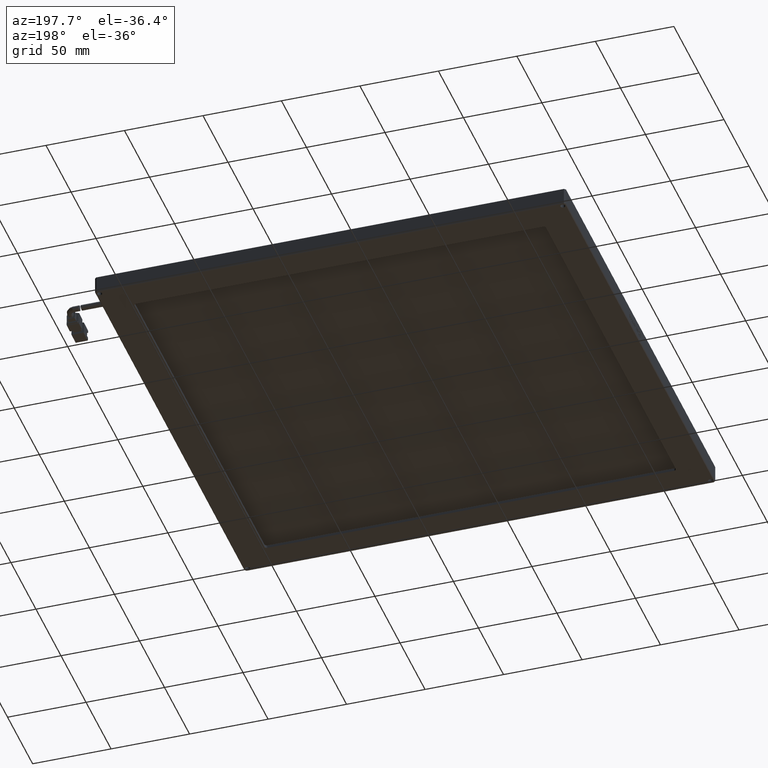
[diagram: clean part render]
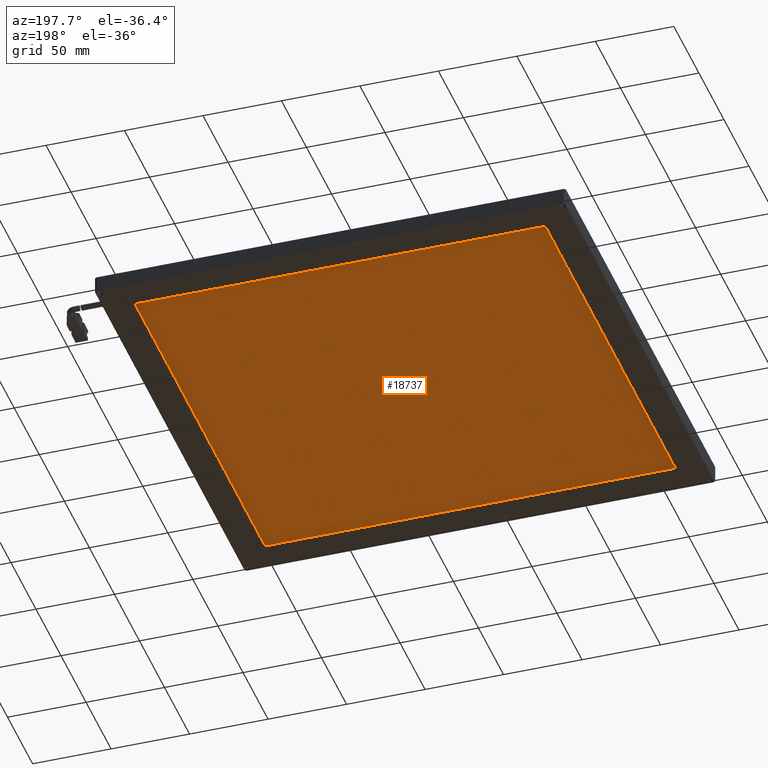
[diagram: same view with one face highlighted and labeled with its STEP entity id]
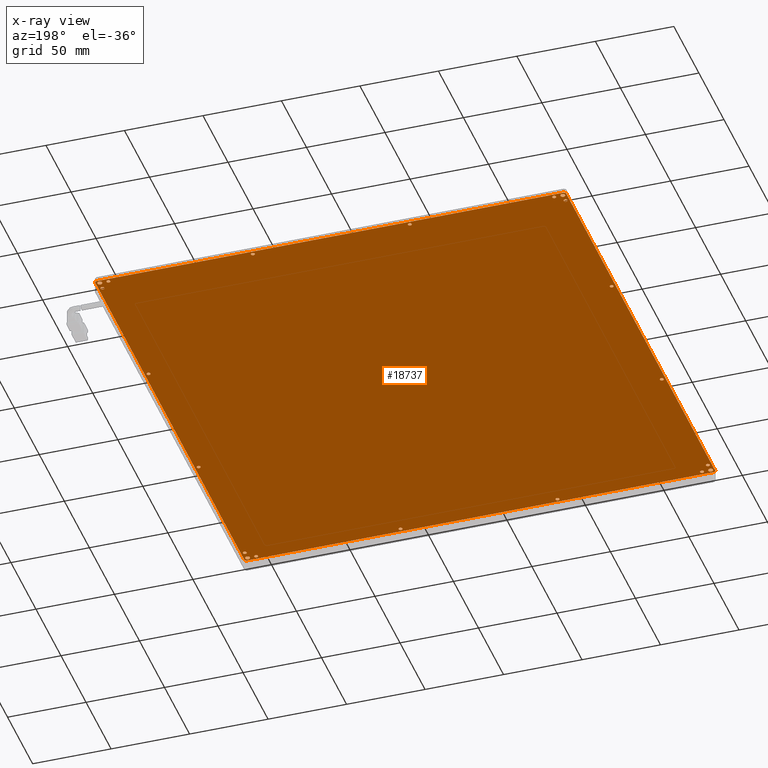
[diagram: x-ray of the same camera — body ghosted, the highlighted face saturated]
A machine part, auxiliary view. The second image highlights one B-rep face of the part: STEP entity #18737.
The next image is the same camera in x-ray: the body ghosted, the highlighted face saturated — about 0% of this face is hidden behind the body in this view.
In plain terms, the highlighted planar face has unit normal (0, 0, -1).
Its self-contained STEP definition (entity closure, byte-faithful):
#83 = DIRECTION ( 'NONE',  ( 1.000000000000000000, 0.0000000000000000000, 0.0000000000000000000 ) ) ;
#145 = EDGE_CURVE ( 'NONE', #11761, #1352, #11151, .T. ) ;
#193 = DIRECTION ( 'NONE',  ( -0.0000000000000000000, -0.0000000000000000000, 1.000000000000000000 ) ) ;
#235 = DIRECTION ( 'NONE',  ( 1.000000000000000000, 0.0000000000000000000, 0.0000000000000000000 ) ) ;
#320 = DIRECTION ( 'NONE',  ( 1.000000000000000000, 0.0000000000000000000, 0.0000000000000000000 ) ) ;
#372 = EDGE_CURVE ( 'NONE', #13410, #1768, #1755, .T. ) ;
#375 = DIRECTION ( 'NONE',  ( -0.0000000000000000000, -0.0000000000000000000, 1.000000000000000000 ) ) ;
#453 = CARTESIAN_POINT ( 'NONE',  ( 116.5726522842639700, 89.45380710659888700, 4.999999999999931600 ) ) ;
#458 = CARTESIAN_POINT ( 'NONE',  ( 117.7726522842639600, -102.5461928934010800, 4.999999999999931600 ) ) ;
#541 = DIRECTION ( 'NONE',  ( -0.7071067811865474600, -0.7071067811865474600, 0.0000000000000000000 ) ) ;
#591 = DIRECTION ( 'NONE',  ( 1.000000000000000000, 0.0000000000000000000, 0.0000000000000000000 ) ) ;
#592 = AXIS2_PLACEMENT_3D ( 'NONE', #7322, #17657, #8845 ) ;
#613 = CIRCLE ( 'NONE', #5356, 1.199999999999978900 ) ;
#659 = VERTEX_POINT ( 'NONE', #14449 ) ;
#734 = EDGE_CURVE ( 'NONE', #3322, #1005, #4504, .T. ) ;
#793 = CARTESIAN_POINT ( 'NONE',  ( -171.7273477157360200, -108.0461928934010800, 4.999999999999931600 ) ) ;
#1000 = EDGE_LOOP ( 'NONE', ( #16165, #18681 ) ) ;
#1005 = VERTEX_POINT ( 'NONE', #16422 ) ;
#1149 = VERTEX_POINT ( 'NONE', #13603 ) ;
#1198 = AXIS2_PLACEMENT_3D ( 'NONE', #4271, #5664, #4863 ) ;
#1204 = EDGE_CURVE ( 'NONE', #10111, #14779, #4694, .T. ) ;
#1222 = DIRECTION ( 'NONE',  ( 1.000000000000000000, 0.0000000000000000000, 0.0000000000000000000 ) ) ;
#1317 = DIRECTION ( 'NONE',  ( -0.0000000000000000000, -0.0000000000000000000, 1.000000000000000000 ) ) ;
#1331 = CARTESIAN_POINT ( 'NONE',  ( -170.5273477157360300, 186.9538071065989000, 4.999999999999931600 ) ) ;
#1352 = VERTEX_POINT ( 'NONE', #15015 ) ;
#1382 = VERTEX_POINT ( 'NONE', #10790 ) ;
#1387 = EDGE_CURVE ( 'NONE', #1149, #3064, #11187, .T. ) ;
#1489 = DIRECTION ( 'NONE',  ( -0.0000000000000000000, -0.0000000000000000000, 1.000000000000000000 ) ) ;
#1575 = CIRCLE ( 'NONE', #14925, 1.200000000000006600 ) ;
#1613 = FACE_BOUND ( 'NONE', #4375, .T. ) ;
#1654 = DIRECTION ( 'NONE',  ( -0.0000000000000000000, -0.0000000000000000000, 1.000000000000000000 ) ) ;
#1681 = VERTEX_POINT ( 'NONE', #16152 ) ;
#1697 = EDGE_CURVE ( 'NONE', #12675, #1962, #16235, .T. ) ;
#1748 = CARTESIAN_POINT ( 'NONE',  ( 112.2726522842639400, -108.0461928934010800, 4.999999999999931600 ) ) ;
#1755 = CIRCLE ( 'NONE', #1198, 1.200000000000006600 ) ;
#1768 = VERTEX_POINT ( 'NONE', #13342 ) ;
#1785 = CIRCLE ( 'NONE', #5091, 1.199999999999978900 ) ;
#1837 = EDGE_CURVE ( 'NONE', #16550, #4241, #9991, .T. ) ;
#1866 = EDGE_CURVE ( 'NONE', #659, #1890, #7192, .T. ) ;
#1890 = VERTEX_POINT ( 'NONE', #9856 ) ;
#1919 = DIRECTION ( 'NONE',  ( 1.000000000000000000, 0.0000000000000000000, 0.0000000000000000000 ) ) ;
#1947 = EDGE_CURVE ( 'NONE', #9341, #2327, #1982, .T. ) ;
#1962 = VERTEX_POINT ( 'NONE', #18947 ) ;
#1982 = CIRCLE ( 'NONE', #16885, 1.200000000000006600 ) ;
#2060 = FACE_BOUND ( 'NONE', #10217, .T. ) ;
#2212 = CIRCLE ( 'NONE', #2643, 1.500000000000001300 ) ;
#2214 = EDGE_CURVE ( 'NONE', #12881, #15191, #4942, .T. ) ;
#2244 = DIRECTION ( 'NONE',  ( -0.0000000000000000000, -0.0000000000000000000, 1.000000000000000000 ) ) ;
#2257 = DIRECTION ( 'NONE',  ( 1.000000000000000000, 0.0000000000000000000, 0.0000000000000000000 ) ) ;
#2287 = DIRECTION ( 'NONE',  ( -0.0000000000000000000, -0.0000000000000000000, 1.000000000000000000 ) ) ;
#2327 = VERTEX_POINT ( 'NONE', #13350 ) ;
#2422 = AXIS2_PLACEMENT_3D ( 'NONE', #8207, #2287, #11443 ) ;
#2484 = CARTESIAN_POINT ( 'NONE',  ( 113.4726522842639300, 186.9538071065989000, 4.999999999999931600 ) ) ;
#2510 = FACE_BOUND ( 'NONE', #17790, .T. ) ;
#2607 = AXIS2_PLACEMENT_3D ( 'NONE', #8955, #193, #10432 ) ;
#2612 = DIRECTION ( 'NONE',  ( 0.7071067811865474600, 0.7071067811865474600, 0.0000000000000000000 ) ) ;
#2615 = ORIENTED_EDGE ( 'NONE', *, *, #8906, .T. ) ;
#2638 = DIRECTION ( 'NONE',  ( 0.7071067811865474600, -0.7071067811865474600, 0.0000000000000000000 ) ) ;
#2643 = AXIS2_PLACEMENT_3D ( 'NONE', #3321, #13589, #4787 ) ;
#2727 = ORIENTED_EDGE ( 'NONE', *, *, #372, .T. ) ;
#2772 = ORIENTED_EDGE ( 'NONE', *, *, #3471, .T. ) ;
#2837 = DIRECTION ( 'NONE',  ( 0.0000000000000000000, 1.000000000000000000, 0.0000000000000000000 ) ) ;
#2867 = EDGE_CURVE ( 'NONE', #15608, #13973, #7237, .T. ) ;
#2913 = EDGE_CURVE ( 'NONE', #17012, #15883, #13284, .T. ) ;
#2975 = FACE_BOUND ( 'NONE', #4351, .T. ) ;
#3057 = CARTESIAN_POINT ( 'NONE',  ( -178.7273477157361000, -110.5461928934010800, 4.999999999999929800 ) ) ;
#3064 = VERTEX_POINT ( 'NONE', #7780 ) ;
#3175 = EDGE_CURVE ( 'NONE', #15607, #9614, #7216, .T. ) ;
#3212 = DIRECTION ( 'NONE',  ( 1.000000000000000000, 0.0000000000000000000, 0.0000000000000000000 ) ) ;
#3225 = DIRECTION ( 'NONE',  ( 1.000000000000000000, 0.0000000000000000000, 0.0000000000000000000 ) ) ;
#3276 = DIRECTION ( 'NONE',  ( -0.0000000000000000000, -0.0000000000000000000, 1.000000000000000000 ) ) ;
#3321 = CARTESIAN_POINT ( 'NONE',  ( 117.7726522842639600, 186.9538071065989000, 4.999999999999931600 ) ) ;
#3322 = VERTEX_POINT ( 'NONE', #13103 ) ;
#3330 = CIRCLE ( 'NONE', #18949, 1.199999999999978900 ) ;
#3370 = CARTESIAN_POINT ( 'NONE',  ( 113.4726522842639300, -108.0461928934010800, 4.999999999999931600 ) ) ;
#3447 = CARTESIAN_POINT ( 'NONE',  ( -178.4273477157360300, -102.5461928934010800, 4.999999999999931600 ) ) ;
#3450 = ORIENTED_EDGE ( 'NONE', *, *, #6002, .T. ) ;
#3451 = FACE_BOUND ( 'NONE', #17673, .T. ) ;
#3456 = DIRECTION ( 'NONE',  ( -0.0000000000000000000, -0.0000000000000000000, 1.000000000000000000 ) ) ;
#3471 = EDGE_CURVE ( 'NONE', #10892, #4112, #8351, .T. ) ;
#3509 = AXIS2_PLACEMENT_3D ( 'NONE', #18165, #9325, #591 ) ;
#3572 = LINE ( 'NONE', #7272, #14797 ) ;
#3715 = VECTOR ( 'NONE', #541, 1000.000000000000100 ) ;
#3781 = CARTESIAN_POINT ( 'NONE',  ( -179.7273477157360400, 188.4538071065987300, 4.999999999999929800 ) ) ;
#3795 = EDGE_CURVE ( 'NONE', #12235, #16550, #3572, .T. ) ;
#3820 = CIRCLE ( 'NONE', #3509, 1.500000000000001300 ) ;
#3830 = DIRECTION ( 'NONE',  ( -0.0000000000000000000, -0.0000000000000000000, 1.000000000000000000 ) ) ;
#3852 = CIRCLE ( 'NONE', #14048, 1.500000000000001300 ) ;
#3909 = EDGE_CURVE ( 'NONE', #12186, #11638, #9703, .T. ) ;
#3930 = ORIENTED_EDGE ( 'NONE', *, *, #1387, .T. ) ;
#3989 = ORIENTED_EDGE ( 'NONE', *, *, #9495, .T. ) ;
#4046 = EDGE_CURVE ( 'NONE', #4112, #10892, #11556, .T. ) ;
#4112 = VERTEX_POINT ( 'NONE', #8297 ) ;
#4124 = CARTESIAN_POINT ( 'NONE',  ( -171.7273477157360200, -108.0461928934010800, 4.999999999999931600 ) ) ;
#4140 = ORIENTED_EDGE ( 'NONE', *, *, #7331, .T. ) ;
#4211 = CARTESIAN_POINT ( 'NONE',  ( -79.72734771573603000, -108.0461928934010800, 4.999999999999931600 ) ) ;
#4241 = VERTEX_POINT ( 'NONE', #13162 ) ;
#4271 = CARTESIAN_POINT ( 'NONE',  ( -171.7273477157360200, 186.9538071065989000, 4.999999999999931600 ) ) ;
#4351 = EDGE_LOOP ( 'NONE', ( #3450, #17193 ) ) ;
#4375 = EDGE_LOOP ( 'NONE', ( #2727, #3989 ) ) ;
#4382 = DIRECTION ( 'NONE',  ( 1.000000000000000000, -0.0000000000000000000, 0.0000000000000000000 ) ) ;
#4422 = CARTESIAN_POINT ( 'NONE',  ( 117.7726522842639600, -108.0461928934010800, 4.999999999999931600 ) ) ;
#4489 = EDGE_LOOP ( 'NONE', ( #14212, #5053 ) ) ;
#4504 = CIRCLE ( 'NONE', #2422, 1.199999999999992600 ) ;
#4608 = ORIENTED_EDGE ( 'NONE', *, *, #14821, .T. ) ;
#4692 = ORIENTED_EDGE ( 'NONE', *, *, #3175, .T. ) ;
#4694 = CIRCLE ( 'NONE', #13550, 1.199999999999978900 ) ;
#4714 = VERTEX_POINT ( 'NONE', #9117 ) ;
#4723 = ORIENTED_EDGE ( 'NONE', *, *, #16469, .T. ) ;
#4737 = AXIS2_PLACEMENT_3D ( 'NONE', #12065, #3276, #13541 ) ;
#4771 = EDGE_CURVE ( 'NONE', #9614, #15607, #12148, .T. ) ;
#4787 = DIRECTION ( 'NONE',  ( 1.000000000000000000, 0.0000000000000000000, 0.0000000000000000000 ) ) ;
#4798 = ORIENTED_EDGE ( 'NONE', *, *, #1697, .T. ) ;
#4801 = EDGE_CURVE ( 'NONE', #1681, #16981, #3852, .T. ) ;
#4820 = VERTEX_POINT ( 'NONE', #6458 ) ;
#4851 = ORIENTED_EDGE ( 'NONE', *, *, #1947, .T. ) ;
#4863 = DIRECTION ( 'NONE',  ( 1.000000000000000000, 0.0000000000000000000, 0.0000000000000000000 ) ) ;
#4942 = CIRCLE ( 'NONE', #6282, 1.200000000000006600 ) ;
#5053 = ORIENTED_EDGE ( 'NONE', *, *, #10251, .T. ) ;
#5091 = AXIS2_PLACEMENT_3D ( 'NONE', #10408, #1654, #11906 ) ;
#5245 = DIRECTION ( 'NONE',  ( -0.0000000000000000000, -0.0000000000000000000, 1.000000000000000000 ) ) ;
#5253 = ORIENTED_EDGE ( 'NONE', *, *, #17217, .T. ) ;
#5265 = DIRECTION ( 'NONE',  ( -0.0000000000000000000, -1.000000000000000000, -0.0000000000000000000 ) ) ;
#5295 = DIRECTION ( 'NONE',  ( -0.0000000000000000000, -0.0000000000000000000, 1.000000000000000000 ) ) ;
#5356 = AXIS2_PLACEMENT_3D ( 'NONE', #1748, #12008, #3212 ) ;
#5427 = CIRCLE ( 'NONE', #12982, 1.200000000000006600 ) ;
#5471 = FACE_BOUND ( 'NONE', #13067, .T. ) ;
#5474 = ORIENTED_EDGE ( 'NONE', *, *, #12350, .T. ) ;
#5484 = CARTESIAN_POINT ( 'NONE',  ( -179.7273477157360400, 188.4538071065987900, 4.999999999999929800 ) ) ;
#5487 = CIRCLE ( 'NONE', #6230, 1.200000000000006600 ) ;
#5502 = DIRECTION ( 'NONE',  ( -0.0000000000000000000, -0.0000000000000000000, 1.000000000000000000 ) ) ;
#5639 = CARTESIAN_POINT ( 'NONE',  ( 111.0726522842639700, -108.0461928934010800, 4.999999999999931600 ) ) ;
#5664 = DIRECTION ( 'NONE',  ( -0.0000000000000000000, -0.0000000000000000000, 1.000000000000000000 ) ) ;
#5678 = DIRECTION ( 'NONE',  ( 1.000000000000000000, 0.0000000000000000000, 0.0000000000000000000 ) ) ;
#5703 = CARTESIAN_POINT ( 'NONE',  ( -177.2273477157360400, 181.4538071065989000, 4.999999999999931600 ) ) ;
#5737 = EDGE_CURVE ( 'NONE', #4714, #9435, #7904, .T. ) ;
#5871 = DIRECTION ( 'NONE',  ( 1.000000000000000000, 0.0000000000000000000, 0.0000000000000000000 ) ) ;
#5928 = FACE_BOUND ( 'NONE', #14293, .T. ) ;
#5961 = DIRECTION ( 'NONE',  ( 1.000000000000000000, 0.0000000000000000000, 0.0000000000000000000 ) ) ;
#5966 = EDGE_LOOP ( 'NONE', ( #15287, #13094 ) ) ;
#6002 = EDGE_CURVE ( 'NONE', #13973, #15608, #3820, .T. ) ;
#6105 = LINE ( 'NONE', #9607, #9535 ) ;
#6198 = DIRECTION ( 'NONE',  ( -0.0000000000000000000, -0.0000000000000000000, 1.000000000000000000 ) ) ;
#6204 = DIRECTION ( 'NONE',  ( -0.0000000000000000000, -0.0000000000000000000, 1.000000000000000000 ) ) ;
#6207 = AXIS2_PLACEMENT_3D ( 'NONE', #4422, #14666, #5871 ) ;
#6230 = AXIS2_PLACEMENT_3D ( 'NONE', #14996, #6198, #16509 ) ;
#6282 = AXIS2_PLACEMENT_3D ( 'NONE', #4124, #1317, #14378 ) ;
#6330 = EDGE_CURVE ( 'NONE', #4820, #8802, #5427, .T. ) ;
#6338 = DIRECTION ( 'NONE',  ( -0.0000000000000000000, -0.0000000000000000000, 1.000000000000000000 ) ) ;
#6340 = EDGE_CURVE ( 'NONE', #3064, #1149, #1575, .T. ) ;
#6372 = FACE_BOUND ( 'NONE', #4489, .T. ) ;
#6390 = DIRECTION ( 'NONE',  ( -0.0000000000000000000, -0.0000000000000000000, 1.000000000000000000 ) ) ;
#6438 = CARTESIAN_POINT ( 'NONE',  ( -178.7273477157360400, -108.0461928934010800, 4.999999999999931600 ) ) ;
#6442 = EDGE_CURVE ( 'NONE', #1005, #3322, #18320, .T. ) ;
#6449 = EDGE_LOOP ( 'NONE', ( #12182, #15576 ) ) ;
#6458 = CARTESIAN_POINT ( 'NONE',  ( -178.4273477157360300, 89.45380710659888700, 4.999999999999931600 ) ) ;
#6587 = ORIENTED_EDGE ( 'NONE', *, *, #14475, .T. ) ;
#6690 = CARTESIAN_POINT ( 'NONE',  ( -179.7273477157360400, -109.5461928934011400, 4.999999999999929800 ) ) ;
#6716 = CARTESIAN_POINT ( 'NONE',  ( 118.9726522842639300, 181.4538071065989000, 4.999999999999931600 ) ) ;
#6815 = FACE_BOUND ( 'NONE', #14848, .T. ) ;
#6834 = VERTEX_POINT ( 'NONE', #19053 ) ;
#6879 = PLANE ( 'NONE',  #15702 ) ;
#6934 = DIRECTION ( 'NONE',  ( 0.0000000000000000000, 0.0000000000000000000, -1.000000000000000000 ) ) ;
#6992 = AXIS2_PLACEMENT_3D ( 'NONE', #17814, #8992, #235 ) ;
#7029 = CARTESIAN_POINT ( 'NONE',  ( -177.2273477157360400, 181.4538071065989000, 4.999999999999931600 ) ) ;
#7140 = DIRECTION ( 'NONE',  ( 1.000000000000000000, 0.0000000000000000000, 0.0000000000000000000 ) ) ;
#7167 = ORIENTED_EDGE ( 'NONE', *, *, #734, .T. ) ;
#7192 = CIRCLE ( 'NONE', #9002, 1.200000000000006600 ) ;
#7191 = CARTESIAN_POINT ( 'NONE',  ( -179.7273477157360400, 189.4538071065989000, 4.999999999999931600 ) ) ;
#7216 = CIRCLE ( 'NONE', #15361, 1.199999999999978900 ) ;
#7237 = CIRCLE ( 'NONE', #11370, 1.500000000000001300 ) ;
#7272 = CARTESIAN_POINT ( 'NONE',  ( -179.7273477157360400, 189.4538071065989000, 4.999999999999931600 ) ) ;
#7285 = CARTESIAN_POINT ( 'NONE',  ( 21.47265228426395500, 186.9538071065989000, 4.999999999999931600 ) ) ;
#7298 = EDGE_LOOP ( 'NONE', ( #4851, #4723 ) ) ;
#7322 = CARTESIAN_POINT ( 'NONE',  ( -177.2273477157360400, 89.45380710659888700, 4.999999999999931600 ) ) ;
#7331 = EDGE_CURVE ( 'NONE', #15883, #12235, #8082, .T. ) ;
#7395 = CIRCLE ( 'NONE', #12731, 1.200000000000006600 ) ;
#7521 = ORIENTED_EDGE ( 'NONE', *, *, #145, .T. ) ;
#7719 = AXIS2_PLACEMENT_3D ( 'NONE', #13970, #13914, #11032 ) ;
#7736 = EDGE_LOOP ( 'NONE', ( #2772, #9160 ) ) ;
#7780 = CARTESIAN_POINT ( 'NONE',  ( -176.0273477157360300, -10.54619289340108400, 4.999999999999931600 ) ) ;
#7842 = AXIS2_PLACEMENT_3D ( 'NONE', #9354, #8311, #13983 ) ;
#7883 = CARTESIAN_POINT ( 'NONE',  ( 116.2726522842639600, 186.9538071065989000, 4.999999999999931600 ) ) ;
#7904 = CIRCLE ( 'NONE', #15028, 1.199999999999992600 ) ;
#7940 = AXIS2_PLACEMENT_3D ( 'NONE', #8258, #18561, #9729 ) ;
#7967 = AXIS2_PLACEMENT_3D ( 'NONE', #17906, #9080, #320 ) ;
#8082 = LINE ( 'NONE', #5484, #18916 ) ;
#8117 = CARTESIAN_POINT ( 'NONE',  ( 118.9726522842639300, -10.54619289340108400, 4.999999999999931600 ) ) ;
#8204 = EDGE_LOOP ( 'NONE', ( #7521, #11009, #13362, #4140, #13998, #10586, #12649, #14708 ) ) ;
#8207 = CARTESIAN_POINT ( 'NONE',  ( -79.72734771573603000, 186.9538071065989000, 4.999999999999931600 ) ) ;
#8235 = VERTEX_POINT ( 'NONE', #3447 ) ;
#8258 = CARTESIAN_POINT ( 'NONE',  ( 117.7726522842639600, 181.4538071065989000, 4.999999999999931600 ) ) ;
#8297 = CARTESIAN_POINT ( 'NONE',  ( -178.7273477157360400, 186.9538071065989000, 4.999999999999931600 ) ) ;
#8311 = DIRECTION ( 'NONE',  ( -0.0000000000000000000, -0.0000000000000000000, 1.000000000000000000 ) ) ;
#8351 = CIRCLE ( 'NONE', #7719, 1.500000000000001300 ) ;
#8409 = VECTOR ( 'NONE', #13332, 1000.000000000000100 ) ;
#8497 = CIRCLE ( 'NONE', #17926, 1.200000000000006600 ) ;
#8527 = DIRECTION ( 'NONE',  ( 1.000000000000000000, 0.0000000000000000000, 0.0000000000000000000 ) ) ;
#8554 = EDGE_CURVE ( 'NONE', #18599, #1382, #3330, .T. ) ;
#8705 = EDGE_LOOP ( 'NONE', ( #11928, #6587 ) ) ;
#8802 = VERTEX_POINT ( 'NONE', #16236 ) ;
#8840 = DIRECTION ( 'NONE',  ( -0.0000000000000000000, -0.0000000000000000000, 1.000000000000000000 ) ) ;
#8845 = DIRECTION ( 'NONE',  ( 1.000000000000000000, 0.0000000000000000000, 0.0000000000000000000 ) ) ;
#8887 = CARTESIAN_POINT ( 'NONE',  ( 119.2726522842639600, -108.0461928934010800, 4.999999999999931600 ) ) ;
#8905 = CARTESIAN_POINT ( 'NONE',  ( -176.0273477157360300, -102.5461928934010800, 4.999999999999931600 ) ) ;
#8906 = EDGE_CURVE ( 'NONE', #1382, #18599, #14512, .T. ) ;
#8940 = EDGE_CURVE ( 'NONE', #11638, #12186, #13165, .T. ) ;
#8950 = DIRECTION ( 'NONE',  ( 1.000000000000000000, 0.0000000000000000000, 0.0000000000000000000 ) ) ;
#8955 = CARTESIAN_POINT ( 'NONE',  ( -171.7273477157360200, 186.9538071065989000, 4.999999999999931600 ) ) ;
#8982 = CARTESIAN_POINT ( 'NONE',  ( 20.27265228426394800, -108.0461928934010800, 4.999999999999931600 ) ) ;
#8992 = DIRECTION ( 'NONE',  ( -0.0000000000000000000, -0.0000000000000000000, 1.000000000000000000 ) ) ;
#9002 = AXIS2_PLACEMENT_3D ( 'NONE', #8982, #5502, #3225 ) ;
#9079 = VECTOR ( 'NONE', #2638, 1000.000000000000100 ) ;
#9080 = DIRECTION ( 'NONE',  ( -0.0000000000000000000, -0.0000000000000000000, 1.000000000000000000 ) ) ;
#9117 = CARTESIAN_POINT ( 'NONE',  ( -78.52734771573604200, -108.0461928934010800, 4.999999999999931600 ) ) ;
#9126 = CARTESIAN_POINT ( 'NONE',  ( 20.27265228426394800, -108.0461928934010800, 4.999999999999931600 ) ) ;
#9160 = ORIENTED_EDGE ( 'NONE', *, *, #4046, .T. ) ;
#9325 = DIRECTION ( 'NONE',  ( -0.0000000000000000000, -0.0000000000000000000, 1.000000000000000000 ) ) ;
#9341 = VERTEX_POINT ( 'NONE', #7285 ) ;
#9354 = CARTESIAN_POINT ( 'NONE',  ( -177.2273477157360400, -10.54619289340108400, 4.999999999999931600 ) ) ;
#9366 = FACE_BOUND ( 'NONE', #7298, .T. ) ;
#9435 = VERTEX_POINT ( 'NONE', #13348 ) ;
#9495 = EDGE_CURVE ( 'NONE', #1768, #13410, #11685, .T. ) ;
#9535 = VECTOR ( 'NONE', #5265, 1000.000000000000000 ) ;
#9607 = CARTESIAN_POINT ( 'NONE',  ( 120.2726522842639600, 189.4538071065989000, 4.999999999999931600 ) ) ;
#9614 = VERTEX_POINT ( 'NONE', #453 ) ;
#9617 = ORIENTED_EDGE ( 'NONE', *, *, #10046, .T. ) ;
#9657 = DIRECTION ( 'NONE',  ( -0.0000000000000000000, -0.0000000000000000000, 1.000000000000000000 ) ) ;
#9703 = CIRCLE ( 'NONE', #15878, 1.199999999999978900 ) ;
#9718 = CARTESIAN_POINT ( 'NONE',  ( 117.7726522842639600, 89.45380710659888700, 4.999999999999931600 ) ) ;
#9729 = DIRECTION ( 'NONE',  ( 1.000000000000000000, 0.0000000000000000000, 0.0000000000000000000 ) ) ;
#9759 = CARTESIAN_POINT ( 'NONE',  ( 117.7726522842639600, -108.0461928934010800, 4.999999999999931600 ) ) ;
#9778 = CIRCLE ( 'NONE', #18011, 1.199999999999978900 ) ;
#9814 = FACE_BOUND ( 'NONE', #1000, .T. ) ;
#9856 = CARTESIAN_POINT ( 'NONE',  ( 21.47265228426395500, -108.0461928934010800, 4.999999999999931600 ) ) ;
#9885 = CARTESIAN_POINT ( 'NONE',  ( -175.7273477157360400, 186.9538071065989000, 4.999999999999931600 ) ) ;
#9963 = DIRECTION ( 'NONE',  ( -0.0000000000000000000, -0.0000000000000000000, 1.000000000000000000 ) ) ;
#9984 = DIRECTION ( 'NONE',  ( -0.0000000000000000000, -0.0000000000000000000, 1.000000000000000000 ) ) ;
#9991 = LINE ( 'NONE', #12713, #9079 ) ;
#10003 = ORIENTED_EDGE ( 'NONE', *, *, #10026, .T. ) ;
#10026 = EDGE_CURVE ( 'NONE', #13669, #12150, #1785, .T. ) ;
#10046 = EDGE_CURVE ( 'NONE', #9435, #4714, #13027, .T. ) ;
#10079 = AXIS2_PLACEMENT_3D ( 'NONE', #9759, #9963, #8950 ) ;
#10111 = VERTEX_POINT ( 'NONE', #3370 ) ;
#10217 = EDGE_LOOP ( 'NONE', ( #4692, #18019 ) ) ;
#10248 = CARTESIAN_POINT ( 'NONE',  ( -177.2273477157360400, 89.45380710659888700, 4.999999999999931600 ) ) ;
#10251 = EDGE_CURVE ( 'NONE', #15191, #12881, #14829, .T. ) ;
#10266 = VERTEX_POINT ( 'NONE', #13923 ) ;
#10303 = FACE_BOUND ( 'NONE', #11824, .T. ) ;
#10408 = CARTESIAN_POINT ( 'NONE',  ( 117.7726522842639600, 181.4538071065989000, 4.999999999999931600 ) ) ;
#10432 = DIRECTION ( 'NONE',  ( 1.000000000000000000, 0.0000000000000000000, 0.0000000000000000000 ) ) ;
#10586 = ORIENTED_EDGE ( 'NONE', *, *, #1837, .T. ) ;
#10608 = DIRECTION ( 'NONE',  ( 1.000000000000000000, 0.0000000000000000000, 0.0000000000000000000 ) ) ;
#10692 = DIRECTION ( 'NONE',  ( -0.0000000000000000000, -0.0000000000000000000, 1.000000000000000000 ) ) ;
#10766 = CARTESIAN_POINT ( 'NONE',  ( 120.2726522842639600, -109.5461928934011400, 4.999999999999929800 ) ) ;
#10771 = FACE_BOUND ( 'NONE', #14498, .T. ) ;
#10790 = CARTESIAN_POINT ( 'NONE',  ( 116.5726522842639700, -10.54619289340108400, 4.999999999999931600 ) ) ;
#10847 = CIRCLE ( 'NONE', #592, 1.200000000000006600 ) ;
#10892 = VERTEX_POINT ( 'NONE', #9885 ) ;
#10952 = EDGE_CURVE ( 'NONE', #12422, #16967, #10961, .T. ) ;
#10961 = CIRCLE ( 'NONE', #15044, 1.200000000000006600 ) ;
#11009 = ORIENTED_EDGE ( 'NONE', *, *, #17823, .T. ) ;
#11021 = CARTESIAN_POINT ( 'NONE',  ( -177.2273477157360400, -102.5461928934010800, 4.999999999999931600 ) ) ;
#11032 = DIRECTION ( 'NONE',  ( 1.000000000000000000, 0.0000000000000000000, 0.0000000000000000000 ) ) ;
#11040 = DIRECTION ( 'NONE',  ( -0.0000000000000000000, -0.0000000000000000000, 1.000000000000000000 ) ) ;
#11056 = ORIENTED_EDGE ( 'NONE', *, *, #18200, .T. ) ;
#11151 = LINE ( 'NONE', #14587, #18977 ) ;
#11187 = CIRCLE ( 'NONE', #7842, 1.200000000000006600 ) ;
#11241 = ORIENTED_EDGE ( 'NONE', *, *, #18534, .T. ) ;
#11370 = AXIS2_PLACEMENT_3D ( 'NONE', #13611, #13419, #13169 ) ;
#11443 = DIRECTION ( 'NONE',  ( 1.000000000000000000, 0.0000000000000000000, 0.0000000000000000000 ) ) ;
#11446 = CIRCLE ( 'NONE', #16726, 1.199999999999978900 ) ;
#11461 = EDGE_LOOP ( 'NONE', ( #10003, #11056 ) ) ;
#11556 = CIRCLE ( 'NONE', #17501, 1.500000000000001300 ) ;
#11638 = VERTEX_POINT ( 'NONE', #15921 ) ;
#11685 = CIRCLE ( 'NONE', #2607, 1.200000000000006600 ) ;
#11746 = DIRECTION ( 'NONE',  ( 1.000000000000000000, 0.0000000000000000000, 0.0000000000000000000 ) ) ;
#11758 = CIRCLE ( 'NONE', #17609, 1.200000000000006600 ) ;
#11761 = VERTEX_POINT ( 'NONE', #13318 ) ;
#11824 = EDGE_LOOP ( 'NONE', ( #11241, #5474 ) ) ;
#11906 = DIRECTION ( 'NONE',  ( 1.000000000000000000, 0.0000000000000000000, 0.0000000000000000000 ) ) ;
#11928 = ORIENTED_EDGE ( 'NONE', *, *, #4801, .T. ) ;
#12008 = DIRECTION ( 'NONE',  ( -0.0000000000000000000, -0.0000000000000000000, 1.000000000000000000 ) ) ;
#12065 = CARTESIAN_POINT ( 'NONE',  ( -79.72734771573603000, 186.9538071065989000, 4.999999999999931600 ) ) ;
#12148 = CIRCLE ( 'NONE', #13096, 1.199999999999978900 ) ;
#12150 = VERTEX_POINT ( 'NONE', #13371 ) ;
#12182 = ORIENTED_EDGE ( 'NONE', *, *, #17935, .T. ) ;
#12186 = VERTEX_POINT ( 'NONE', #16437 ) ;
#12231 = CARTESIAN_POINT ( 'NONE',  ( 112.2726522842639400, 186.9538071065989000, 4.999999999999931600 ) ) ;
#12235 = VERTEX_POINT ( 'NONE', #15060 ) ;
#12277 = EDGE_CURVE ( 'NONE', #6834, #11761, #15397, .T. ) ;
#12350 = EDGE_CURVE ( 'NONE', #8235, #18906, #11758, .T. ) ;
#12422 = VERTEX_POINT ( 'NONE', #15536 ) ;
#12505 = DIRECTION ( 'NONE',  ( 1.000000000000000000, 0.0000000000000000000, 0.0000000000000000000 ) ) ;
#12627 = CARTESIAN_POINT ( 'NONE',  ( 117.7726522842639600, -10.54619289340108400, 4.999999999999931600 ) ) ;
#12649 = ORIENTED_EDGE ( 'NONE', *, *, #18189, .T. ) ;
#12675 = VERTEX_POINT ( 'NONE', #8887 ) ;
#12713 = CARTESIAN_POINT ( 'NONE',  ( 119.2726522842638400, 189.4538071065989000, 4.999999999999929800 ) ) ;
#12731 = AXIS2_PLACEMENT_3D ( 'NONE', #5703, #15995, #7140 ) ;
#12881 = VERTEX_POINT ( 'NONE', #16601 ) ;
#12982 = AXIS2_PLACEMENT_3D ( 'NONE', #10248, #1489, #11746 ) ;
#13027 = CIRCLE ( 'NONE', #6992, 1.199999999999992600 ) ;
#13067 = EDGE_LOOP ( 'NONE', ( #7167, #15277 ) ) ;
#13094 = ORIENTED_EDGE ( 'NONE', *, *, #13516, .T. ) ;
#13096 = AXIS2_PLACEMENT_3D ( 'NONE', #15140, #6338, #16641 ) ;
#13103 = CARTESIAN_POINT ( 'NONE',  ( -78.52734771573604200, 186.9538071065989000, 4.999999999999931600 ) ) ;
#13122 = CARTESIAN_POINT ( 'NONE',  ( 20.27265228426394800, 186.9538071065989000, 4.999999999999931600 ) ) ;
#13151 = ORIENTED_EDGE ( 'NONE', *, *, #6340, .T. ) ;
#13162 = CARTESIAN_POINT ( 'NONE',  ( 120.2726522842639600, 188.4538071065987900, 4.999999999999929800 ) ) ;
#13165 = CIRCLE ( 'NONE', #15864, 1.199999999999978900 ) ;
#13169 = DIRECTION ( 'NONE',  ( 1.000000000000000000, 0.0000000000000000000, 0.0000000000000000000 ) ) ;
#13284 = LINE ( 'NONE', #7191, #17155 ) ;
#13318 = CARTESIAN_POINT ( 'NONE',  ( 119.2726522842640100, -110.5461928934010800, 4.999999999999929800 ) ) ;
#13321 = FACE_BOUND ( 'NONE', #5966, .T. ) ;
#13332 = DIRECTION ( 'NONE',  ( -0.7071067811865474600, 0.7071067811865474600, 0.0000000000000000000 ) ) ;
#13342 = CARTESIAN_POINT ( 'NONE',  ( -172.9273477157360300, 186.9538071065989000, 4.999999999999931600 ) ) ;
#13348 = CARTESIAN_POINT ( 'NONE',  ( -80.92734771573601900, -108.0461928934010800, 4.999999999999931600 ) ) ;
#13350 = CARTESIAN_POINT ( 'NONE',  ( 19.07265228426394200, 186.9538071065989000, 4.999999999999931600 ) ) ;
#13362 = ORIENTED_EDGE ( 'NONE', *, *, #2913, .T. ) ;
#13371 = CARTESIAN_POINT ( 'NONE',  ( 116.5726522842639700, 181.4538071065989000, 4.999999999999931600 ) ) ;
#13410 = VERTEX_POINT ( 'NONE', #1331 ) ;
#13419 = DIRECTION ( 'NONE',  ( -0.0000000000000000000, -0.0000000000000000000, 1.000000000000000000 ) ) ;
#13437 = CARTESIAN_POINT ( 'NONE',  ( -175.7273477157360400, -108.0461928934010800, 4.999999999999931600 ) ) ;
#13516 = EDGE_CURVE ( 'NONE', #10266, #16554, #9778, .T. ) ;
#13541 = DIRECTION ( 'NONE',  ( 1.000000000000000000, 0.0000000000000000000, 0.0000000000000000000 ) ) ;
#13550 = AXIS2_PLACEMENT_3D ( 'NONE', #18317, #15563, #18254 ) ;
#13589 = DIRECTION ( 'NONE',  ( -0.0000000000000000000, -0.0000000000000000000, 1.000000000000000000 ) ) ;
#13596 = AXIS2_PLACEMENT_3D ( 'NONE', #793, #11040, #2257 ) ;
#13603 = CARTESIAN_POINT ( 'NONE',  ( -178.4273477157360300, -10.54619289340108400, 4.999999999999931600 ) ) ;
#13611 = CARTESIAN_POINT ( 'NONE',  ( -177.2273477157360400, -108.0461928934010800, 4.999999999999931600 ) ) ;
#13669 = VERTEX_POINT ( 'NONE', #6716 ) ;
#13711 = DIRECTION ( 'NONE',  ( 1.000000000000000000, 0.0000000000000000000, 0.0000000000000000000 ) ) ;
#13766 = FACE_BOUND ( 'NONE', #17822, .T. ) ;
#13914 = DIRECTION ( 'NONE',  ( -0.0000000000000000000, -0.0000000000000000000, 1.000000000000000000 ) ) ;
#13919 = CIRCLE ( 'NONE', #7940, 1.199999999999978900 ) ;
#13923 = CARTESIAN_POINT ( 'NONE',  ( 111.0726522842639700, 186.9538071065989000, 4.999999999999931600 ) ) ;
#13970 = CARTESIAN_POINT ( 'NONE',  ( -177.2273477157360400, 186.9538071065989000, 4.999999999999931600 ) ) ;
#13973 = VERTEX_POINT ( 'NONE', #13437 ) ;
#13983 = DIRECTION ( 'NONE',  ( 1.000000000000000000, 0.0000000000000000000, 0.0000000000000000000 ) ) ;
#13998 = ORIENTED_EDGE ( 'NONE', *, *, #3795, .T. ) ;
#14035 = CARTESIAN_POINT ( 'NONE',  ( -177.2273477157360400, 186.9538071065989000, 4.999999999999931600 ) ) ;
#14048 = AXIS2_PLACEMENT_3D ( 'NONE', #15205, #6390, #16710 ) ;
#14080 = CARTESIAN_POINT ( 'NONE',  ( 20.27265228426394800, 186.9538071065989000, 4.999999999999931600 ) ) ;
#14092 = DIRECTION ( 'NONE',  ( 1.000000000000000000, 0.0000000000000000000, 0.0000000000000000000 ) ) ;
#14194 = FACE_BOUND ( 'NONE', #15148, .T. ) ;
#14212 = ORIENTED_EDGE ( 'NONE', *, *, #2214, .T. ) ;
#14293 = EDGE_LOOP ( 'NONE', ( #17298, #2615 ) ) ;
#14378 = DIRECTION ( 'NONE',  ( 1.000000000000000000, 0.0000000000000000000, 0.0000000000000000000 ) ) ;
#14449 = CARTESIAN_POINT ( 'NONE',  ( 19.07265228426394200, -108.0461928934010800, 4.999999999999931600 ) ) ;
#14475 = EDGE_CURVE ( 'NONE', #16981, #1681, #2212, .T. ) ;
#14477 = DIRECTION ( 'NONE',  ( -0.0000000000000000000, -0.0000000000000000000, 1.000000000000000000 ) ) ;
#14498 = EDGE_LOOP ( 'NONE', ( #14681, #16762 ) ) ;
#14512 = CIRCLE ( 'NONE', #7967, 1.199999999999978900 ) ;
#14587 = CARTESIAN_POINT ( 'NONE',  ( -179.7273477157360400, -110.5461928934010800, 4.999999999999931600 ) ) ;
#14659 = FACE_BOUND ( 'NONE', #8705, .T. ) ;
#14666 = DIRECTION ( 'NONE',  ( -0.0000000000000000000, -0.0000000000000000000, 1.000000000000000000 ) ) ;
#14681 = ORIENTED_EDGE ( 'NONE', *, *, #16135, .T. ) ;
#14708 = ORIENTED_EDGE ( 'NONE', *, *, #12277, .T. ) ;
#14779 = VERTEX_POINT ( 'NONE', #5639 ) ;
#14797 = VECTOR ( 'NONE', #4382, 1000.000000000000000 ) ;
#14821 = EDGE_CURVE ( 'NONE', #16967, #12422, #7395, .T. ) ;
#14829 = CIRCLE ( 'NONE', #13596, 1.200000000000006600 ) ;
#14848 = EDGE_LOOP ( 'NONE', ( #4798, #5253 ) ) ;
#14913 = ORIENTED_EDGE ( 'NONE', *, *, #5737, .T. ) ;
#14925 = AXIS2_PLACEMENT_3D ( 'NONE', #17654, #8840, #83 ) ;
#14996 = CARTESIAN_POINT ( 'NONE',  ( -177.2273477157360400, -102.5461928934010800, 4.999999999999931600 ) ) ;
#15004 = CARTESIAN_POINT ( 'NONE',  ( 117.7726522842639600, -102.5461928934010800, 4.999999999999931600 ) ) ;
#15015 = CARTESIAN_POINT ( 'NONE',  ( -178.7273477157360700, -110.5461928934010800, 4.999999999999929800 ) ) ;
#15028 = AXIS2_PLACEMENT_3D ( 'NONE', #4211, #14477, #5678 ) ;
#15044 = AXIS2_PLACEMENT_3D ( 'NONE', #7029, #17357, #8527 ) ;
#15060 = CARTESIAN_POINT ( 'NONE',  ( -178.7273477157359300, 189.4538071065989000, 4.999999999999929800 ) ) ;
#15112 = CIRCLE ( 'NONE', #6207, 1.500000000000001300 ) ;
#15124 = FACE_BOUND ( 'NONE', #7736, .T. ) ;
#15140 = CARTESIAN_POINT ( 'NONE',  ( 117.7726522842639600, 89.45380710659888700, 4.999999999999931600 ) ) ;
#15148 = EDGE_LOOP ( 'NONE', ( #13151, #3930 ) ) ;
#15191 = VERTEX_POINT ( 'NONE', #17136 ) ;
#15205 = CARTESIAN_POINT ( 'NONE',  ( 117.7726522842639600, 186.9538071065989000, 4.999999999999931600 ) ) ;
#15242 = CARTESIAN_POINT ( 'NONE',  ( 118.9726522842639300, 89.45380710659888700, 4.999999999999931600 ) ) ;
#15277 = ORIENTED_EDGE ( 'NONE', *, *, #6442, .T. ) ;
#15287 = ORIENTED_EDGE ( 'NONE', *, *, #18770, .T. ) ;
#15361 = AXIS2_PLACEMENT_3D ( 'NONE', #9718, #9657, #17135 ) ;
#15397 = LINE ( 'NONE', #10766, #3715 ) ;
#15412 = ORIENTED_EDGE ( 'NONE', *, *, #1204, .T. ) ;
#15490 = DIRECTION ( 'NONE',  ( 1.000000000000000000, 0.0000000000000000000, 0.0000000000000000000 ) ) ;
#15495 = EDGE_CURVE ( 'NONE', #14779, #10111, #613, .T. ) ;
#15535 = DIRECTION ( 'NONE',  ( 1.000000000000000000, 0.0000000000000000000, 0.0000000000000000000 ) ) ;
#15536 = CARTESIAN_POINT ( 'NONE',  ( -176.0273477157360300, 181.4538071065989000, 4.999999999999931600 ) ) ;
#15554 = AXIS2_PLACEMENT_3D ( 'NONE', #9126, #375, #10608 ) ;
#15563 = DIRECTION ( 'NONE',  ( -0.0000000000000000000, -0.0000000000000000000, 1.000000000000000000 ) ) ;
#15576 = ORIENTED_EDGE ( 'NONE', *, *, #1866, .T. ) ;
#15599 = ORIENTED_EDGE ( 'NONE', *, *, #10952, .T. ) ;
#15607 = VERTEX_POINT ( 'NONE', #15242 ) ;
#15608 = VERTEX_POINT ( 'NONE', #6438 ) ;
#15674 = CARTESIAN_POINT ( 'NONE',  ( 119.2726522842638400, 189.4538071065989000, 4.999999999999929800 ) ) ;
#15702 = AXIS2_PLACEMENT_3D ( 'NONE', #15759, #6934, #17258 ) ;
#15759 = CARTESIAN_POINT ( 'NONE',  ( -179.7273477157360400, 189.4538071065989000, 4.999999999999931600 ) ) ;
#15864 = AXIS2_PLACEMENT_3D ( 'NONE', #458, #10692, #1919 ) ;
#15878 = AXIS2_PLACEMENT_3D ( 'NONE', #15004, #6204, #16514 ) ;
#15883 = VERTEX_POINT ( 'NONE', #3781 ) ;
#15921 = CARTESIAN_POINT ( 'NONE',  ( 116.5726522842639700, -102.5461928934010800, 4.999999999999931600 ) ) ;
#15995 = DIRECTION ( 'NONE',  ( -0.0000000000000000000, -0.0000000000000000000, 1.000000000000000000 ) ) ;
#16135 = EDGE_CURVE ( 'NONE', #8802, #4820, #10847, .T. ) ;
#16151 = DIRECTION ( 'NONE',  ( -1.000000000000000000, 0.0000000000000000000, -0.0000000000000000000 ) ) ;
#16152 = CARTESIAN_POINT ( 'NONE',  ( 119.2726522842639600, 186.9538071065989000, 4.999999999999931600 ) ) ;
#16165 = ORIENTED_EDGE ( 'NONE', *, *, #3909, .T. ) ;
#16235 = CIRCLE ( 'NONE', #10079, 1.500000000000001300 ) ;
#16236 = CARTESIAN_POINT ( 'NONE',  ( -176.0273477157360300, 89.45380710659888700, 4.999999999999931600 ) ) ;
#16268 = DIRECTION ( 'NONE',  ( -0.0000000000000000000, -0.0000000000000000000, 1.000000000000000000 ) ) ;
#16275 = LINE ( 'NONE', #3057, #8409 ) ;
#16422 = CARTESIAN_POINT ( 'NONE',  ( -80.92734771573601900, 186.9538071065989000, 4.999999999999931600 ) ) ;
#16437 = CARTESIAN_POINT ( 'NONE',  ( 118.9726522842639300, -102.5461928934010800, 4.999999999999931600 ) ) ;
#16469 = EDGE_CURVE ( 'NONE', #2327, #9341, #8497, .T. ) ;
#16509 = DIRECTION ( 'NONE',  ( 1.000000000000000000, 0.0000000000000000000, 0.0000000000000000000 ) ) ;
#16514 = DIRECTION ( 'NONE',  ( 1.000000000000000000, 0.0000000000000000000, 0.0000000000000000000 ) ) ;
#16550 = VERTEX_POINT ( 'NONE', #15674 ) ;
#16554 = VERTEX_POINT ( 'NONE', #2484 ) ;
#16601 = CARTESIAN_POINT ( 'NONE',  ( -170.5273477157360300, -108.0461928934010800, 4.999999999999931600 ) ) ;
#16641 = DIRECTION ( 'NONE',  ( 1.000000000000000000, 0.0000000000000000000, 0.0000000000000000000 ) ) ;
#16710 = DIRECTION ( 'NONE',  ( 1.000000000000000000, 0.0000000000000000000, 0.0000000000000000000 ) ) ;
#16720 = CARTESIAN_POINT ( 'NONE',  ( -178.4273477157360300, 181.4538071065989000, 4.999999999999931600 ) ) ;
#16726 = AXIS2_PLACEMENT_3D ( 'NONE', #18805, #9984, #1222 ) ;
#16762 = ORIENTED_EDGE ( 'NONE', *, *, #6330, .T. ) ;
#16885 = AXIS2_PLACEMENT_3D ( 'NONE', #13122, #16268, #5961 ) ;
#16967 = VERTEX_POINT ( 'NONE', #16720 ) ;
#16981 = VERTEX_POINT ( 'NONE', #7883 ) ;
#17012 = VERTEX_POINT ( 'NONE', #6690 ) ;
#17135 = DIRECTION ( 'NONE',  ( 1.000000000000000000, 0.0000000000000000000, 0.0000000000000000000 ) ) ;
#17136 = CARTESIAN_POINT ( 'NONE',  ( -172.9273477157360300, -108.0461928934010800, 4.999999999999931600 ) ) ;
#17155 = VECTOR ( 'NONE', #2837, 1000.000000000000000 ) ;
#17193 = ORIENTED_EDGE ( 'NONE', *, *, #2867, .T. ) ;
#17196 = FACE_BOUND ( 'NONE', #11461, .T. ) ;
#17217 = EDGE_CURVE ( 'NONE', #1962, #12675, #15112, .T. ) ;
#17258 = DIRECTION ( 'NONE',  ( -1.000000000000000000, 0.0000000000000000000, -0.0000000000000000000 ) ) ;
#17298 = ORIENTED_EDGE ( 'NONE', *, *, #8554, .T. ) ;
#17357 = DIRECTION ( 'NONE',  ( -0.0000000000000000000, -0.0000000000000000000, 1.000000000000000000 ) ) ;
#17401 = CIRCLE ( 'NONE', #15554, 1.200000000000006600 ) ;
#17501 = AXIS2_PLACEMENT_3D ( 'NONE', #14035, #5245, #15490 ) ;
#17609 = AXIS2_PLACEMENT_3D ( 'NONE', #11021, #2244, #12505 ) ;
#17654 = CARTESIAN_POINT ( 'NONE',  ( -177.2273477157360400, -10.54619289340108400, 4.999999999999931600 ) ) ;
#17657 = DIRECTION ( 'NONE',  ( -0.0000000000000000000, -0.0000000000000000000, 1.000000000000000000 ) ) ;
#17673 = EDGE_LOOP ( 'NONE', ( #15599, #4608 ) ) ;
#17682 = FACE_BOUND ( 'NONE', #6449, .T. ) ;
#17790 = EDGE_LOOP ( 'NONE', ( #14913, #9617 ) ) ;
#17814 = CARTESIAN_POINT ( 'NONE',  ( -79.72734771573603000, -108.0461928934010800, 4.999999999999931600 ) ) ;
#17822 = EDGE_LOOP ( 'NONE', ( #15412, #18000 ) ) ;
#17823 = EDGE_CURVE ( 'NONE', #1352, #17012, #16275, .T. ) ;
#17906 = CARTESIAN_POINT ( 'NONE',  ( 117.7726522842639600, -10.54619289340108400, 4.999999999999931600 ) ) ;
#17926 = AXIS2_PLACEMENT_3D ( 'NONE', #14080, #5295, #15535 ) ;
#17935 = EDGE_CURVE ( 'NONE', #1890, #659, #17401, .T. ) ;
#18000 = ORIENTED_EDGE ( 'NONE', *, *, #15495, .T. ) ;
#18011 = AXIS2_PLACEMENT_3D ( 'NONE', #12231, #3456, #13711 ) ;
#18019 = ORIENTED_EDGE ( 'NONE', *, *, #4771, .T. ) ;
#18146 = FACE_OUTER_BOUND ( 'NONE', #8204, .T. ) ;
#18165 = CARTESIAN_POINT ( 'NONE',  ( -177.2273477157360400, -108.0461928934010800, 4.999999999999931600 ) ) ;
#18189 = EDGE_CURVE ( 'NONE', #4241, #6834, #6105, .T. ) ;
#18200 = EDGE_CURVE ( 'NONE', #12150, #13669, #13919, .T. ) ;
#18254 = DIRECTION ( 'NONE',  ( 1.000000000000000000, 0.0000000000000000000, 0.0000000000000000000 ) ) ;
#18317 = CARTESIAN_POINT ( 'NONE',  ( 112.2726522842639400, -108.0461928934010800, 4.999999999999931600 ) ) ;
#18320 = CIRCLE ( 'NONE', #4737, 1.199999999999992600 ) ;
#18534 = EDGE_CURVE ( 'NONE', #18906, #8235, #5487, .T. ) ;
#18561 = DIRECTION ( 'NONE',  ( -0.0000000000000000000, -0.0000000000000000000, 1.000000000000000000 ) ) ;
#18599 = VERTEX_POINT ( 'NONE', #8117 ) ;
#18681 = ORIENTED_EDGE ( 'NONE', *, *, #8940, .T. ) ;
#18737 = ADVANCED_FACE ( 'NONE', ( #10771, #3451, #15124, #14659, #6815, #2975, #18146, #14194, #10303, #6372, #2510, #17682, #13766, #9814, #5928, #2060, #17196, #13321, #9366, #5471, #1613 ), #6879, .T. ) ;
#18770 = EDGE_CURVE ( 'NONE', #16554, #10266, #11446, .T. ) ;
#18805 = CARTESIAN_POINT ( 'NONE',  ( 112.2726522842639400, 186.9538071065989000, 4.999999999999931600 ) ) ;
#18906 = VERTEX_POINT ( 'NONE', #8905 ) ;
#18916 = VECTOR ( 'NONE', #2612, 1000.000000000000100 ) ;
#18947 = CARTESIAN_POINT ( 'NONE',  ( 116.2726522842639600, -108.0461928934010800, 4.999999999999931600 ) ) ;
#18949 = AXIS2_PLACEMENT_3D ( 'NONE', #12627, #3830, #14092 ) ;
#18977 = VECTOR ( 'NONE', #16151, 1000.000000000000000 ) ;
#19053 = CARTESIAN_POINT ( 'NONE',  ( 120.2726522842640100, -109.5461928934011000, 4.999999999999929800 ) ) ;